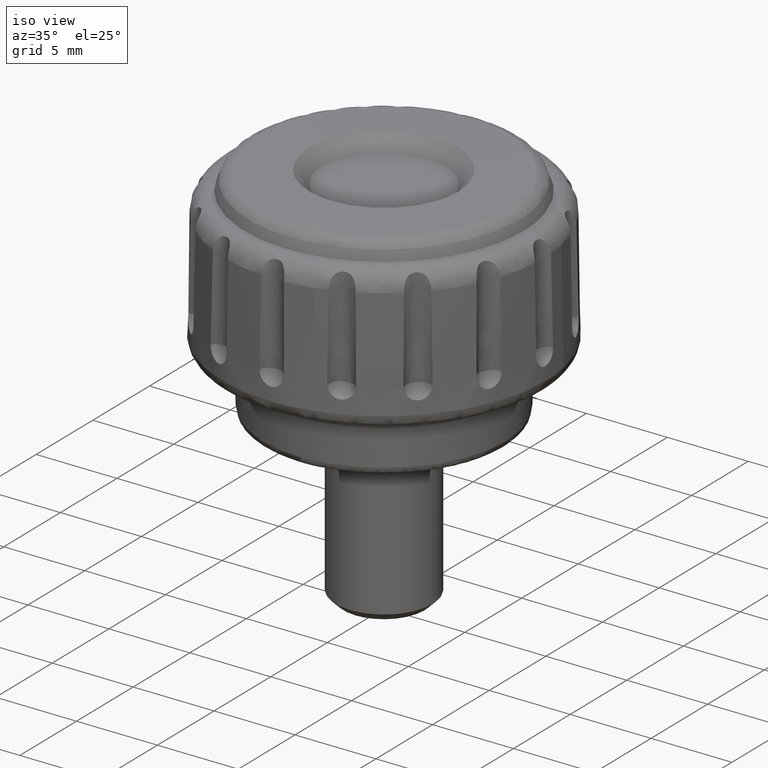
[diagram: clean part render]
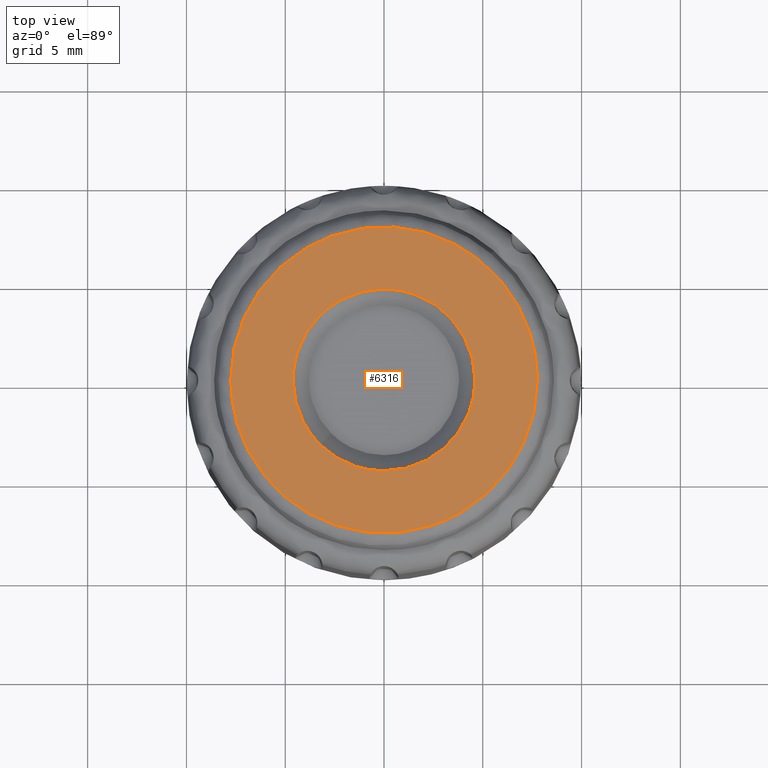
[diagram: tour spotlight — one face highlighted and labeled with its STEP entity id]
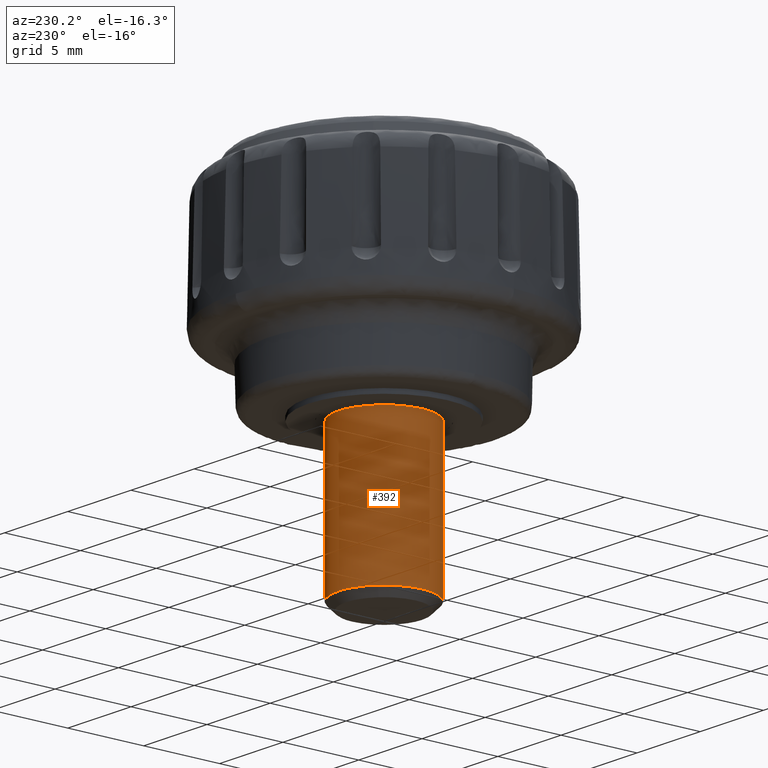
[diagram: tour spotlight — one face highlighted and labeled with its STEP entity id]
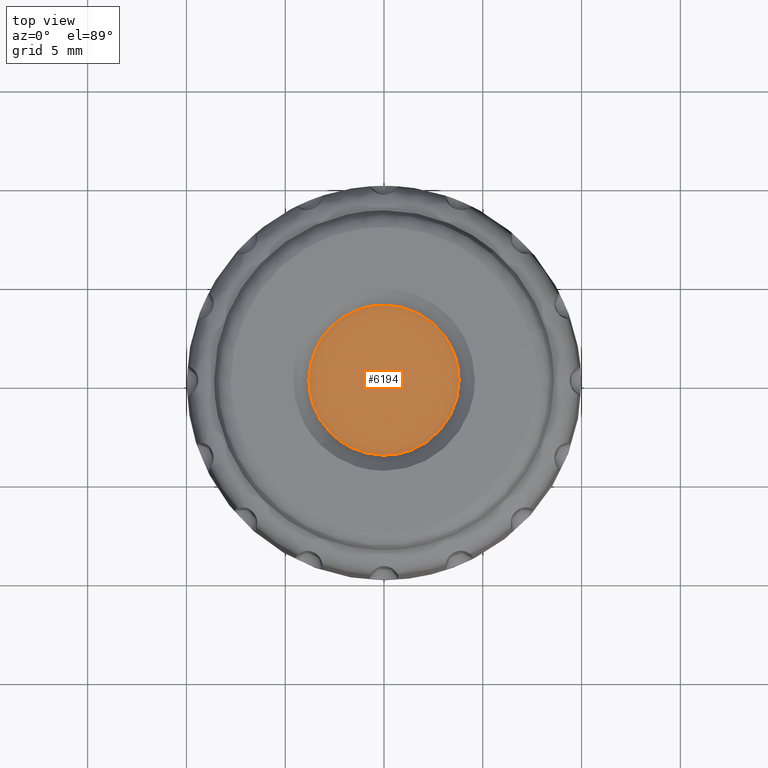
[diagram: tour spotlight — one face highlighted and labeled with its STEP entity id]
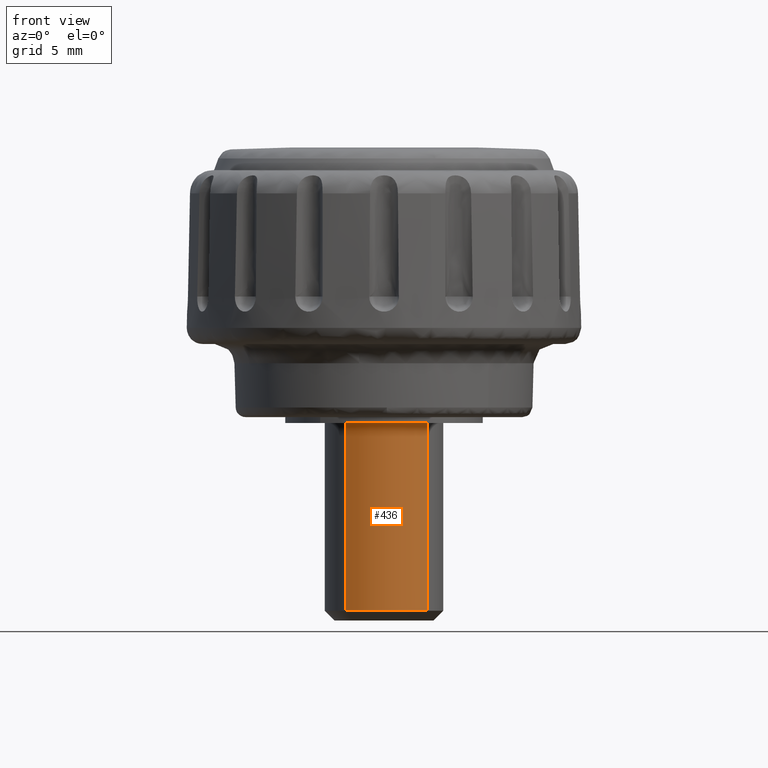
[diagram: tour spotlight — one face highlighted and labeled with its STEP entity id]
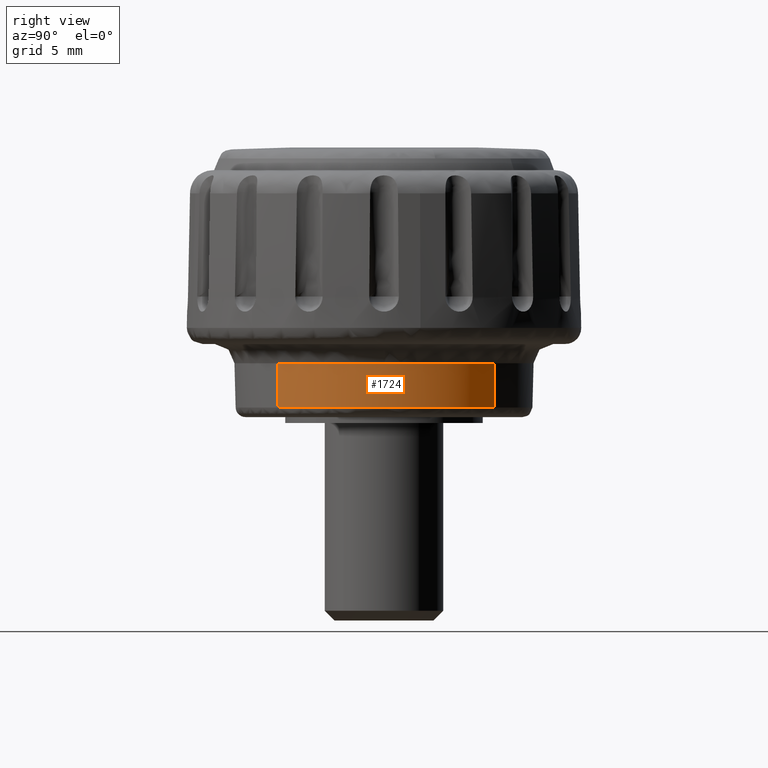
[diagram: tour spotlight — one face highlighted and labeled with its STEP entity id]
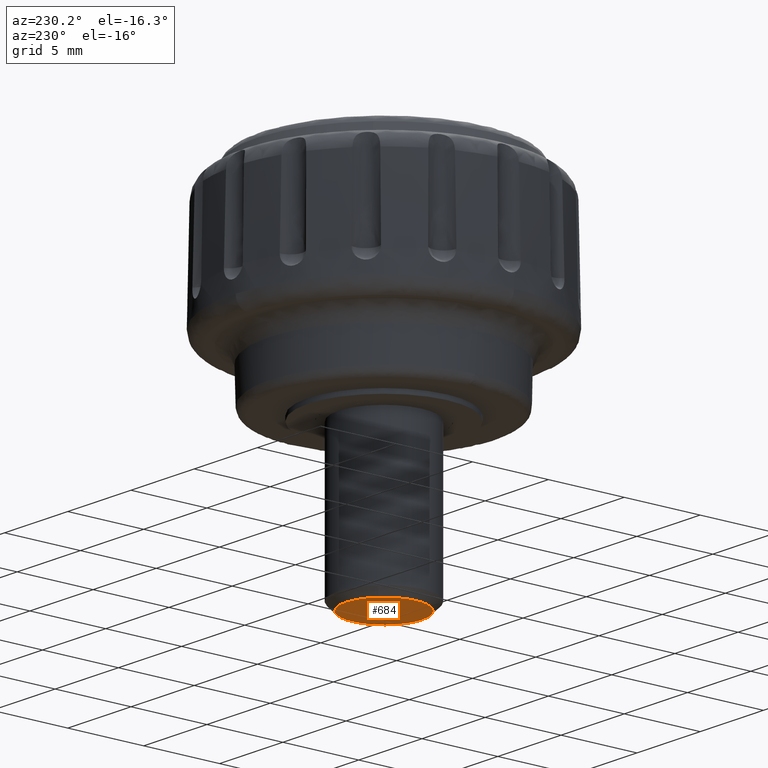
[diagram: tour spotlight — one face highlighted and labeled with its STEP entity id]
A machine part: a face-by-face anatomy tour. The part has 70 B-rep faces; the first image is the clean iso view, then the 6 largest visible faces are spotlighted one at a time (largest first), each with its STEP entity span.

Face 1 — top view, entity #6316. In plain terms, the highlighted face is a freeform B-spline surface patch.
Definition (entity closure, byte-faithful):
#1031=CARTESIAN_POINT('',(-3.226391813104342,-3.283200161639714,13.947016429423300));
#1032=VERTEX_POINT('',#1031);
#1038=CARTESIAN_POINT('',(0.000000261323402,-4.603151999999993,13.947016462083740));
#1039=VERTEX_POINT('',#1038);
#1040=CARTESIAN_POINT('',(-3.226391813104342,-3.283200161639714,13.947016429423300));
#1041=CARTESIAN_POINT('',(-3.060387970830835,-3.446351995465380,13.947016431103769));
#1042=CARTESIAN_POINT('',(-2.760643047192076,-3.699213682633801,13.947016434138030));
#1043=CARTESIAN_POINT('',(-2.251592182368727,-4.027951657538598,13.947016439291140));
#1044=CARTESIAN_POINT('',(-1.756260790220992,-4.268480264637456,13.947016444305209));
#1045=CARTESIAN_POINT('',(-1.172907090481399,-4.464794611152382,13.947016450210540));
#1046=CARTESIAN_POINT('',(-0.595856791151045,-4.578270579598567,13.947016456052051));
#1047=CARTESIAN_POINT('',(-0.186204289395901,-4.603155248808148,13.947016460198650));
#1048=CARTESIAN_POINT('',(0.000000261323402,-4.603151999999993,13.947016462083740));
#1049=B_SPLINE_CURVE_WITH_KNOTS('',3,(#1040,#1041,#1042,#1043,#1044,#1045,#1046,#1047,#1048),.UNSPECIFIED.,.F.,.U.,(4,1,1,1,1,1,4),(3.349638E-009,0.698269075464816,1.173095212023360,1.815498043043235,2.346186556476549,3.016527577985100,3.575142755144841),.UNSPECIFIED.);
#1050=EDGE_CURVE('',#1032,#1039,#1049,.T.);
#1052=CARTESIAN_POINT('',(4.603152000000000,0.0,13.947016462083740));
#1053=VERTEX_POINT('',#1052);
#1054=CARTESIAN_POINT('',(0.000000261323402,-4.603151999999993,13.947016462083740));
#1055=CARTESIAN_POINT('',(0.273032988767705,-4.603179605209070,13.947016462083759));
#1056=CARTESIAN_POINT('',(0.687275757395026,-4.566180971157755,13.947016462083720));
#1057=CARTESIAN_POINT('',(1.330540408832775,-4.419659630731927,13.947016462083750));
#1058=CARTESIAN_POINT('',(1.907293291828556,-4.209306593173576,13.947016462083660));
#1059=CARTESIAN_POINT('',(2.444866373092151,-3.913410929232071,13.947016462083869));
#1060=CARTESIAN_POINT('',(2.934805978365908,-3.561562985617827,13.947016462083560));
#1061=CARTESIAN_POINT('',(3.441299034274784,-3.093998786874699,13.947016462084321));
#1062=CARTESIAN_POINT('',(3.903554511424704,-2.482554733955997,13.947016462082500));
#1063=CARTESIAN_POINT('',(4.266498514660441,-1.777679681519577,13.947016462084790));
#1064=CARTESIAN_POINT('',(4.530330194787697,-0.979115217682138,13.947016462082891));
#1065=CARTESIAN_POINT('',(4.603232334489497,-0.357770086112199,13.947016462084170));
#1066=CARTESIAN_POINT('',(4.603152000000000,0.0,13.947016462083740));
#1067=B_SPLINE_CURVE_WITH_KNOTS('',3,(#1054,#1055,#1056,#1057,#1058,#1059,#1060,#1061,#1062,#1063,#1064,#1065,#1066),.UNSPECIFIED.,.F.,.U.,(4,1,1,1,1,1,1,1,1,1,4),(0.000000013033456,0.819092426731512,1.242762794829674,1.977124490998249,2.654995453510337,3.078666378968654,3.784778167893312,4.716852160537105,5.366479664217192,6.157333408862392,7.230625448727457),.UNSPECIFIED.);
#1068=EDGE_CURVE('',#1039,#1053,#1067,.T.);
#1070=CARTESIAN_POINT('',(-0.000000261323313,4.603151999999992,13.947016462083740));
#1071=VERTEX_POINT('',#1070);
#1072=CARTESIAN_POINT('',(4.603152000000000,0.0,13.947016462083740));
#1073=CARTESIAN_POINT('',(4.603226542943982,0.357769406958450,13.947016462083790));
#1074=CARTESIAN_POINT('',(4.529235180154762,0.988535507651289,13.947016462083671));
#1075=CARTESIAN_POINT('',(4.280835443467709,1.732702787291445,13.947016462083811));
#1076=CARTESIAN_POINT('',(4.008700003123817,2.281656306378146,13.947016462083701));
#1077=CARTESIAN_POINT('',(3.672445987519089,2.805588118939510,13.947016462083820));
#1078=CARTESIAN_POINT('',(3.240297899060793,3.294303124068879,13.947016462083520));
#1079=CARTESIAN_POINT('',(2.755546535251988,3.699612823794959,13.947016462083891));
#1080=CARTESIAN_POINT('',(2.235999538662103,4.042209233578916,13.947016462083649));
#1081=CARTESIAN_POINT('',(1.679791083357495,4.303176315157686,13.947016462083781));
#1082=CARTESIAN_POINT('',(0.903788762069201,4.538587144045447,13.947016462084120));
#1083=CARTESIAN_POINT('',(0.367189688401405,4.603237132635266,13.947016462082980));
#1084=CARTESIAN_POINT('',(-0.000000261323313,4.603151999999992,13.947016462083740));
#1085=B_SPLINE_CURVE_WITH_KNOTS('',3,(#1072,#1073,#1074,#1075,#1076,#1077,#1078,#1079,#1080,#1081,#1082,#1083,#1084),.UNSPECIFIED.,.F.,.U.,(4,1,1,1,1,1,1,1,1,1,4),(0.000000013026232,1.073295997942021,1.892390603326811,2.344307074195087,2.909197718216737,3.756527756666393,4.293180973558776,4.801586652074978,5.620682124168412,6.129086269664853,7.230625743300220),.UNSPECIFIED.);
#1086=EDGE_CURVE('',#1053,#1071,#1085,.T.);
#1088=CARTESIAN_POINT('',(-3.283200301410175,3.226391950456391,13.947016494744190));
#1089=VERTEX_POINT('',#1088);
#1090=CARTESIAN_POINT('',(-0.000000261323313,4.603151999999992,13.947016462083740));
#1091=CARTESIAN_POINT('',(-0.218947428408233,4.603158087397465,13.947016464261759));
#1092=CARTESIAN_POINT('',(-0.694922821327714,4.569143282316874,13.947016468996660));
#1093=CARTESIAN_POINT('',(-1.346548883943977,4.419002661523463,13.947016475478870));
#1094=CARTESIAN_POINT('',(-2.048450165449368,4.144972393383618,13.947016482461180));
#1095=CARTESIAN_POINT('',(-2.690905248610626,3.765464430213897,13.947016488852279));
#1096=CARTESIAN_POINT('',(-3.109729778434075,3.402933341700772,13.947016493018481));
#1097=CARTESIAN_POINT('',(-3.283200301410175,3.226391950456391,13.947016494744190));
#1098=B_SPLINE_CURVE_WITH_KNOTS('',3,(#1090,#1091,#1092,#1093,#1094,#1095,#1096,#1097),.UNSPECIFIED.,.F.,.U.,(4,1,1,1,1,4),(3.493563E-009,0.656843286244349,1.427925707088231,1.999091430189626,2.912963812140091,3.655482845923065),.UNSPECIFIED.);
#1099=EDGE_CURVE('',#1071,#1089,#1098,.T.);
#1199=CARTESIAN_POINT('',(-4.603152000000000,0.0,13.947016462083740));
#1200=VERTEX_POINT('',#1199);
#1201=CARTESIAN_POINT('',(-3.283200301410175,3.226391950456391,13.947016494744190));
#1202=CARTESIAN_POINT('',(-3.511642819595066,2.994009359874393,13.947016492391789));
#1203=CARTESIAN_POINT('',(-3.837355670432383,2.583138892595343,13.947016488232601));
#1204=CARTESIAN_POINT('',(-4.195547198155288,1.928376263219341,13.947016481604511));
#1205=CARTESIAN_POINT('',(-4.438213217057482,1.291592480047662,13.947016475158421));
#1206=CARTESIAN_POINT('',(-4.576015768793602,0.633099669196763,13.947016468492521));
#1207=CARTESIAN_POINT('',(-4.603153840812557,0.186204340297902,13.947016463968680));
#1208=CARTESIAN_POINT('',(-4.603152000000000,0.0,13.947016462083740));
#1209=B_SPLINE_CURVE_WITH_KNOTS('',3,(#1201,#1202,#1203,#1204,#1205,#1206,#1207,#1208),.UNSPECIFIED.,.F.,.U.,(4,1,1,1,1,4),(3.349969E-009,0.977578124921422,1.564127701548055,2.234461708688820,3.016527421702827,3.575142569919666),.UNSPECIFIED.);
#1210=EDGE_CURVE('',#1089,#1200,#1209,.T.);
#1212=CARTESIAN_POINT('',(-4.603152000000000,0.0,13.947016462083740));
#1213=CARTESIAN_POINT('',(-4.603154619807374,-0.171350358820500,13.947016460379190));
#1214=CARTESIAN_POINT('',(-4.581871125204968,-0.552129561063462,13.947016456591321));
#1215=CARTESIAN_POINT('',(-4.481130296461829,-1.105999997247883,13.947016451081510));
#1216=CARTESIAN_POINT('',(-4.273595021523551,-1.760482009146291,13.947016444570920));
#1217=CARTESIAN_POINT('',(-3.898324457191377,-2.513769687168486,13.947016437077270));
#1218=CARTESIAN_POINT('',(-3.484463212651435,-3.029707379314340,13.947016431945070));
#1219=CARTESIAN_POINT('',(-3.226391813104342,-3.283200161639714,13.947016429423300));
#1220=B_SPLINE_CURVE_WITH_KNOTS('',3,(#1212,#1213,#1214,#1215,#1216,#1217,#1218,#1219),.UNSPECIFIED.,.F.,.U.,(4,1,1,1,1,4),(3.492949E-009,0.514051979671721,1.142339160505532,1.684953055108919,2.570260587859323,3.655483029438100),.UNSPECIFIED.);
#1221=EDGE_CURVE('',#1200,#1032,#1220,.T.);
#3900=CARTESIAN_POINT('',(2.396358734929993,-7.375233824050735,13.849589605503400));
#3901=VERTEX_POINT('',#3900);
#3913=CARTESIAN_POINT('',(-7.754779730184260,0.0,13.849589606709181));
#3914=VERTEX_POINT('',#3913);
#3915=CARTESIAN_POINT('',(2.396358734929993,-7.375233824050735,13.849589605503400));
#3916=CARTESIAN_POINT('',(1.862388311805299,-7.548838179026086,13.849589605619791));
#3917=CARTESIAN_POINT('',(0.906493397784181,-7.747965358432615,13.849589605817631));
#3918=CARTESIAN_POINT('',(-0.362977747622152,-7.770542789229250,13.849589606057490));
#3919=CARTESIAN_POINT('',(-1.300041365648415,-7.659020813424925,13.849589606222580));
#3920=CARTESIAN_POINT('',(-2.201554583400563,-7.456021599712076,13.849589606372319));
#3921=CARTESIAN_POINT('',(-3.118308476417962,-7.128638710463005,13.849589606513151));
#3922=CARTESIAN_POINT('',(-3.995923869691120,-6.666422694936236,13.849589606633851));
#3923=CARTESIAN_POINT('',(-4.821258825642544,-6.100941464304918,13.849589606735320));
#3924=CARTESIAN_POINT('',(-5.533974706989620,-5.466042137472437,13.849589606808260));
#3925=CARTESIAN_POINT('',(-6.166761267595060,-4.727869621146913,13.849589606858469));
#3926=CARTESIAN_POINT('',(-6.687403756053418,-3.964004417432804,13.849589606881979));
#3927=CARTESIAN_POINT('',(-7.129516576856644,-3.108035109321979,13.849589606885431));
#3928=CARTESIAN_POINT('',(-7.477084842187052,-2.138528651436642,13.849589606858990));
#3929=CARTESIAN_POINT('',(-7.701417794402340,-1.103910524498201,13.849589606803230));
#3930=CARTESIAN_POINT('',(-7.754798563448470,-0.380660589777228,13.849589606745100));
#3931=CARTESIAN_POINT('',(-7.754779730184260,0.0,13.849589606709181));
#3932=B_SPLINE_CURVE_WITH_KNOTS('',3,(#3915,#3916,#3917,#3918,#3919,#3920,#3921,#3922,#3923,#3924,#3925,#3926,#3927,#3928,#3929,#3930,#3931),.UNSPECIFIED.,.F.,.U.,(4,1,1,1,1,1,1,1,1,1,1,1,1,1,4),(0.000000012298992,1.684424855663844,2.912063486891478,3.797104446087985,4.510847626303049,5.681384069865681,6.709175864186492,7.480003046033655,8.679090349917056,9.564132570205850,10.392073926221080,11.448413024238940,12.447652487215660,13.475444784111909,14.617423684785379),.UNSPECIFIED.);
#3933=EDGE_CURVE('',#3901,#3914,#3932,.T.);
#3935=CARTESIAN_POINT('',(7.375233818814479,2.396358732976183,13.849589605719940));
#3936=VERTEX_POINT('',#3935);
#3937=CARTESIAN_POINT('',(-7.754779730184260,0.0,13.849589606709181));
#3938=CARTESIAN_POINT('',(-7.754833070909862,0.485343089320584,13.849589606739981));
#3939=CARTESIAN_POINT('',(-7.676791511465619,1.313262457429692,13.849589606786751));
#3940=CARTESIAN_POINT('',(-7.407131864219365,2.351787251200878,13.849589606832270));
#3941=CARTESIAN_POINT('',(-7.042860974373591,3.298782670799183,13.849589606864971));
#3942=CARTESIAN_POINT('',(-6.605764475950173,4.104585596143863,13.849589606883191));
#3943=CARTESIAN_POINT('',(-5.968728000143736,4.984232553185011,13.849589606890810));
#3944=CARTESIAN_POINT('',(-5.263041480367675,5.735990121773101,13.849589606885511));
#3945=CARTESIAN_POINT('',(-4.339646170550662,6.460270875836376,13.849589606861819));
#3946=CARTESIAN_POINT('',(-3.481899237278167,6.949993767084052,13.849589606828189));
#3947=CARTESIAN_POINT('',(-2.679101174773766,7.289454548450672,13.849589606789181));
#3948=CARTESIAN_POINT('',(-2.011339359971830,7.500548375544622,13.849589606752231));
#3949=CARTESIAN_POINT('',(-1.201784784378430,7.677400578386693,13.849589606702370));
#3950=CARTESIAN_POINT('',(-0.333724368138042,7.768547923749311,13.849589606642679));
#3951=CARTESIAN_POINT('',(0.652643692070650,7.746452395266402,13.849589606566850));
#3952=CARTESIAN_POINT('',(1.530307087490399,7.619285690992925,13.849589606492589));
#3953=CARTESIAN_POINT('',(2.359667871892288,7.401226455328923,13.849589606416149));
#3954=CARTESIAN_POINT('',(3.242886617450471,7.069558920559862,13.849589606328470));
#3955=CARTESIAN_POINT('',(4.164400871319800,6.575911502911052,13.849589606227591));
#3956=CARTESIAN_POINT('',(5.036068702721146,5.925676189956968,13.849589606120549));
#3957=CARTESIAN_POINT('',(5.733764987831465,5.248224705650628,13.849589606024781));
#3958=CARTESIAN_POINT('',(6.328195504274718,4.515237445751425,13.849589605933780));
#3959=CARTESIAN_POINT('',(6.913148945676070,3.582036767890362,13.849589605829861));
#3960=CARTESIAN_POINT('',(7.229713525318721,2.844387494858381,13.849589605759579));
#3961=CARTESIAN_POINT('',(7.375233818814479,2.396358732976183,13.849589605719940));
#3962=B_SPLINE_CURVE_WITH_KNOTS('',3,(#3937,#3938,#3939,#3940,#3941,#3942,#3943,#3944,#3945,#3946,#3947,#3948,#3949,#3950,#3951,#3952,#3953,#3954,#3955,#3956,#3957,#3958,#3959,#3960,#3961),.UNSPECIFIED.,.F.,.U.,(4,1,1,1,1,1,1,1,1,1,1,1,1,1,1,1,1,1,1,1,1,1,4),(0.000000018573665,1.456020476668297,2.483820646400886,3.211836458654190,4.496573987283469,5.224590922290762,6.466502233374856,7.579940557922530,8.736205193927104,9.421396338709831,10.192245082791210,10.834616301881089,11.905203207908841,12.804522638511070,13.789489269378750,14.560333265772700,15.373997009830539,16.615912108134701,17.686528491737679,18.628670869700851,19.527981369240141,20.512953550944431,21.926151000448559),.UNSPECIFIED.);
#3963=EDGE_CURVE('',#3914,#3936,#3962,.T.);
#4002=CARTESIAN_POINT('',(7.754779730184260,0.0,13.849589606709181));
#4003=VERTEX_POINT('',#4002);
#4004=CARTESIAN_POINT('',(7.375233818814479,2.396358732976183,13.849589605719940));
#4005=CARTESIAN_POINT('',(7.465420583281060,2.118803128264872,13.849589605955030));
#4006=CARTESIAN_POINT('',(7.672730312761909,1.332288731731592,13.849589606495240));
#4007=CARTESIAN_POINT('',(7.754861569301347,0.520245812015576,13.849589606709420));
#4008=CARTESIAN_POINT('',(7.754779730184260,0.0,13.849589606709181));
#4009=B_SPLINE_CURVE_WITH_KNOTS('',3,(#4004,#4005,#4006,#4007,#4008),.UNSPECIFIED.,.F.,.U.,(4,1,4),(4.342904E-010,0.875523658112124,2.436238352529898),.UNSPECIFIED.);
#4010=EDGE_CURVE('',#3936,#4003,#4009,.T.);
#4012=CARTESIAN_POINT('',(7.754779730184260,0.0,13.849589606709181));
#4013=CARTESIAN_POINT('',(7.754795274130229,-0.355284542924997,13.849589606709181));
#4014=CARTESIAN_POINT('',(7.705861498835904,-1.065849397294243,13.849589606698190));
#4015=CARTESIAN_POINT('',(7.484569426553112,-2.124048483110809,13.849589606648340));
#4016=CARTESIAN_POINT('',(7.083295125393796,-3.236968710933128,13.849589606558110));
#4017=CARTESIAN_POINT('',(6.509530960043845,-4.273409958696724,13.849589606429010));
#4018=CARTESIAN_POINT('',(5.805252979045129,-5.175798442748333,13.849589606270420));
#4019=CARTESIAN_POINT('',(5.006366562240959,-5.959180523932496,13.849589606090680));
#4020=CARTESIAN_POINT('',(4.171976164529840,-6.565408387278795,13.849589605902890));
#4021=CARTESIAN_POINT('',(3.265517196652688,-7.052746298343029,13.849589605698929));
#4022=CARTESIAN_POINT('',(2.710122287162174,-7.273297040822402,13.849589605574050));
#4023=CARTESIAN_POINT('',(2.396358734929993,-7.375233824050735,13.849589605503400));
#4024=B_SPLINE_CURVE_WITH_KNOTS('',3,(#4012,#4013,#4014,#4015,#4016,#4017,#4018,#4019,#4020,#4021,#4022,#4023),.UNSPECIFIED.,.F.,.U.,(4,1,1,1,1,1,1,1,1,4),(6.593647E-009,1.065852721046584,2.131708467838210,3.235629549121932,4.606014964945518,5.671862279504250,6.661587226301158,7.955842888959979,8.755231876972042,9.744953407059063),.UNSPECIFIED.);
#4025=EDGE_CURVE('',#4003,#3901,#4024,.T.);
#6278=CARTESIAN_POINT('',(-8.524929804420813,-8.524738930365626,13.636301310428923));
#6279=CARTESIAN_POINT('',(-4.264403621807347,-8.528616282743247,13.818070018097037));
#6280=CARTESIAN_POINT('',(4.264403426721783,-8.528616282743247,13.818070018097037));
#6281=CARTESIAN_POINT('',(8.524929414781672,-8.524738930720222,13.636301327052269));
#6282=CARTESIAN_POINT('',(-8.528807069905144,-4.264308054518796,13.818061874846050));
#6283=CARTESIAN_POINT('',(-4.266344018869269,-4.266248494987860,13.999995999999950));
#6284=CARTESIAN_POINT('',(4.266343823694937,-4.266248494987860,13.999995999999950));
#6285=CARTESIAN_POINT('',(8.528806680088950,-4.264308054696255,13.818061891484518));
#6286=CARTESIAN_POINT('',(-8.528807069905144,4.262396339237191,13.818061874846050));
#6287=CARTESIAN_POINT('',(-4.266344018869269,4.264335909794971,13.999995999999950));
#6288=CARTESIAN_POINT('',(4.266343823694937,4.264335909794971,13.999995999999950));
#6289=CARTESIAN_POINT('',(8.528806680088950,4.262396339414571,13.818061891484518));
#6290=CARTESIAN_POINT('',(-8.524933278466410,8.520920710375671,13.636464168631873));
#6291=CARTESIAN_POINT('',(-4.264405360410627,8.524796327672075,13.818233024481057));
#6292=CARTESIAN_POINT('',(4.264405165324984,8.524796327672075,13.818233024481057));
#6293=CARTESIAN_POINT('',(8.524932888827109,8.520920710730110,13.636464185255232));
#6301=(BOUNDED_SURFACE()B_SPLINE_SURFACE(2,2,((#6278,#6282,#6286,#6290),(#6279,#6283,#6287,#6291),(#6280,#6284,#6288,#6292),(#6281,#6285,#6289,#6293)),.UNSPECIFIED.,.F.,.F.,.U.)B_SPLINE_SURFACE_WITH_KNOTS((3,1,3),(3,1,3),(79.265317401885980,87.588287543892932,95.911257305145270),(79.265503754043579,87.588287543892946,95.907340179061890),.UNSPECIFIED.)GEOMETRIC_REPRESENTATION_ITEM()RATIONAL_B_SPLINE_SURFACE(((1.000910064187708,1.000455042282184,1.000455042282184,1.000909656300973),(1.000455021905525,1.0,1.0,1.000454614018789),(1.000455021905525,1.0,1.0,1.000454614018789),(1.000910064146074,1.000455042240550,1.000455042240550,1.000909656259339)))REPRESENTATION_ITEM('')SURFACE());
#6302=ORIENTED_EDGE('',*,*,#3933,.F.);
#6303=ORIENTED_EDGE('',*,*,#4025,.F.);
#6304=ORIENTED_EDGE('',*,*,#4010,.F.);
#6305=ORIENTED_EDGE('',*,*,#3963,.F.);
#6306=EDGE_LOOP('',(#6302,#6303,#6304,#6305));
#6307=FACE_OUTER_BOUND('',#6306,.T.);
#6308=ORIENTED_EDGE('',*,*,#1068,.F.);
#6309=ORIENTED_EDGE('',*,*,#1050,.F.);
#6310=ORIENTED_EDGE('',*,*,#1221,.F.);
#6311=ORIENTED_EDGE('',*,*,#1210,.F.);
#6312=ORIENTED_EDGE('',*,*,#1099,.F.);
#6313=ORIENTED_EDGE('',*,*,#1086,.F.);
#6314=EDGE_LOOP('',(#6308,#6309,#6310,#6311,#6312,#6313));
#6315=FACE_BOUND('',#6314,.T.);
#6316=ADVANCED_FACE('',(#6307,#6315),#6301,.T.);

Face 2 — auxiliary view, entity #392. In plain terms, the highlighted face is a freeform B-spline surface patch.
Definition (entity closure, byte-faithful):
#130=CARTESIAN_POINT('',(2.026770704727430,2.211832099787242,-9.503982959709228));
#131=VERTEX_POINT('',#130);
#137=CARTESIAN_POINT('',(3.0,0.0,-9.503983000000000));
#138=VERTEX_POINT('',#137);
#139=CARTESIAN_POINT('',(2.026770704727430,2.211832099787242,-9.503982959709228));
#140=CARTESIAN_POINT('',(2.165266473807760,2.084952294704629,-9.503982962020473));
#141=CARTESIAN_POINT('',(2.413936845195948,1.809884242826981,-9.503982967031110));
#142=CARTESIAN_POINT('',(2.675908241025121,1.383109840763141,-9.503982974805268));
#143=CARTESIAN_POINT('',(2.850763401160428,0.963774151494884,-9.503982982443874));
#144=CARTESIAN_POINT('',(2.968872019961694,0.518138497859550,-9.503982990561575));
#145=CARTESIAN_POINT('',(3.000022536183211,0.187828937246020,-9.503982996578566));
#146=CARTESIAN_POINT('',(3.0,0.0,-9.503983000000000));
#147=B_SPLINE_CURVE_WITH_KNOTS('',3,(#139,#140,#141,#142,#143,#144,#145,#146),.UNSPECIFIED.,.F.,.U.,(4,1,1,1,1,4),(4.447066E-009,0.563482881577941,1.107536768555267,1.496142522837400,1.923615704269092,2.487098581397036),.UNSPECIFIED.);
#148=EDGE_CURVE('',#131,#138,#147,.T.);
#150=CARTESIAN_POINT('',(2.176123048433030,-2.065063677805594,-9.503982999999952));
#151=VERTEX_POINT('',#150);
#152=CARTESIAN_POINT('',(3.0,0.0,-9.503983000000000));
#153=CARTESIAN_POINT('',(3.000036265043160,-0.207602940019180,-9.503982999999996));
#154=CARTESIAN_POINT('',(2.969083105254621,-0.504156056295727,-9.503982999999977));
#155=CARTESIAN_POINT('',(2.853579478061450,-0.952630495778143,-9.503983000000011));
#156=CARTESIAN_POINT('',(2.712426304452092,-1.306429429666059,-9.503982999999940));
#157=CARTESIAN_POINT('',(2.480114933818109,-1.707562868060090,-9.503983000000018));
#158=CARTESIAN_POINT('',(2.294537764497098,-1.940300765247195,-9.503982999999906));
#159=CARTESIAN_POINT('',(2.176123048433030,-2.065063677805594,-9.503982999999952));
#160=B_SPLINE_CURVE_WITH_KNOTS('',3,(#152,#153,#154,#155,#156,#157,#158,#159),.UNSPECIFIED.,.F.,.U.,(4,1,1,1,1,4),(3.452136E-009,0.622797197223965,0.889712048846822,1.387945945275860,1.761626190831661,2.277657990667467),.UNSPECIFIED.);
#161=EDGE_CURVE('',#138,#151,#160,.T.);
#176=CARTESIAN_POINT('',(-1.937226157680744,-2.290666997320322,-9.503983000000124));
#177=VERTEX_POINT('',#176);
#188=CARTESIAN_POINT('',(-3.0,0.0,-9.503983000000000));
#189=VERTEX_POINT('',#188);
#190=CARTESIAN_POINT('',(-1.937226157680744,-2.290666997320322,-9.503983000000124));
#191=CARTESIAN_POINT('',(-2.077163229383662,-2.172334876040241,-9.503983000000142));
#192=CARTESIAN_POINT('',(-2.363966407790554,-1.880783925773549,-9.503983000000051));
#193=CARTESIAN_POINT('',(-2.638228348831499,-1.456243216122592,-9.503983000000170));
#194=CARTESIAN_POINT('',(-2.813146936698542,-1.058074120815255,-9.503982999999995));
#195=CARTESIAN_POINT('',(-2.953697368642451,-0.617635574056544,-9.503983000000154));
#196=CARTESIAN_POINT('',(-3.000073008729592,-0.251146732347181,-9.503982999999955));
#197=CARTESIAN_POINT('',(-3.0,0.0,-9.503983000000000));
#198=B_SPLINE_CURVE_WITH_KNOTS('',3,(#190,#191,#192,#193,#194,#195,#196,#197),.UNSPECIFIED.,.F.,.U.,(4,1,1,1,1,4),(4.951211E-009,0.549789520470351,1.221759040957704,1.506830215897550,1.852994425546073,2.606409917929356),.UNSPECIFIED.);
#199=EDGE_CURVE('',#177,#189,#198,.T.);
#201=CARTESIAN_POINT('',(-2.092295892351871,2.149952829517147,-9.503983040429738));
#202=VERTEX_POINT('',#201);
#203=CARTESIAN_POINT('',(-3.0,0.0,-9.503983000000000));
#204=CARTESIAN_POINT('',(-3.000003637356503,0.137325953862313,-9.503983002582395));
#205=CARTESIAN_POINT('',(-2.979827213880216,0.430705673465794,-9.503983008099404));
#206=CARTESIAN_POINT('',(-2.896872694548869,0.809926377177596,-9.503983015230649));
#207=CARTESIAN_POINT('',(-2.763420885900806,1.186936181070241,-9.503983022320265));
#208=CARTESIAN_POINT('',(-2.537492661514606,1.640855206041548,-9.503983030856087));
#209=CARTESIAN_POINT('',(-2.280235609305437,1.967154680199719,-9.503983036992294));
#210=CARTESIAN_POINT('',(-2.092295892351871,2.149952829517147,-9.503983040429738));
#211=B_SPLINE_CURVE_WITH_KNOTS('',3,(#203,#204,#205,#206,#207,#208,#209,#210),.UNSPECIFIED.,.F.,.U.,(4,1,1,1,1,4),(3.937011E-009,0.411978815631985,0.880139100201615,1.161033574046817,1.610463414129466,2.396969200931250),.UNSPECIFIED.);
#212=EDGE_CURVE('',#189,#202,#211,.T.);
#249=CARTESIAN_POINT('',(0.000000323567764,2.999999999999982,-9.503983000000000));
#250=VERTEX_POINT('',#249);
#251=CARTESIAN_POINT('',(-2.092295892351871,2.149952829517147,-9.503983040429738));
#252=CARTESIAN_POINT('',(-1.906535854886919,2.330853296255544,-9.503983036840346));
#253=CARTESIAN_POINT('',(-1.614309872822355,2.549250889931367,-9.503983031193444));
#254=CARTESIAN_POINT('',(-1.176358731889312,2.766906856931321,-9.503983022731026));
#255=CARTESIAN_POINT('',(-0.863833032652626,2.879826983275794,-9.503983016691963));
#256=CARTESIAN_POINT('',(-0.464284233324281,2.974284231128553,-9.503983008971453));
#257=CARTESIAN_POINT('',(-0.180893863376441,3.000019558261382,-9.503983003495437));
#258=CARTESIAN_POINT('',(0.000000323567764,2.999999999999982,-9.503983000000000));
#259=B_SPLINE_CURVE_WITH_KNOTS('',3,(#251,#252,#253,#254,#255,#256,#257,#258),.UNSPECIFIED.,.F.,.U.,(4,1,1,1,1,4),(3.524568E-009,0.777840021863649,1.085358589773365,1.465230995832746,1.772749194091111,2.315427406514740),.UNSPECIFIED.);
#260=EDGE_CURVE('',#202,#250,#259,.T.);
#262=CARTESIAN_POINT('',(0.000000323567764,2.999999999999982,-9.503983000000000));
#263=CARTESIAN_POINT('',(0.173852490824325,3.000015468125775,-9.503982996543950));
#264=CARTESIAN_POINT('',(0.509958122783843,2.970697432341027,-9.503982989862390));
#265=CARTESIAN_POINT('',(1.038829464390821,2.832879673944008,-9.503982979348827));
#266=CARTESIAN_POINT('',(1.555340243544191,2.589434629542592,-9.503982969080886));
#267=CARTESIAN_POINT('',(1.881518694431243,2.344962153156827,-9.503982962596766));
#268=CARTESIAN_POINT('',(2.026770704727430,2.211832099787242,-9.503982959709228));
#269=B_SPLINE_CURVE_WITH_KNOTS('',3,(#262,#263,#264,#265,#266,#267,#268),.UNSPECIFIED.,.F.,.U.,(4,1,1,1,4),(9.412209E-010,0.521556318981383,1.008342412059873,1.634209804604458,2.225306972187412),.UNSPECIFIED.);
#270=EDGE_CURVE('',#250,#131,#269,.T.);
#286=CARTESIAN_POINT('',(-1.937226115146076,-2.290666928821395,0.237599575000000));
#287=CARTESIAN_POINT('',(-2.002784018511870,-2.235224349694545,0.237599575000000));
#288=CARTESIAN_POINT('',(-2.065063727081261,-2.176123113036862,0.237599575000000));
#289=CARTESIAN_POINT('',(-4.241186840118123,-0.111059385955601,0.237599575000000));
#290=CARTESIAN_POINT('',(-2.176123113036862,2.065063727081261,0.237599575000000));
#291=CARTESIAN_POINT('',(-0.111059385955601,4.241186840118123,0.237599575000000));
#292=CARTESIAN_POINT('',(2.065063727081261,2.176123113036862,0.237599575000000));
#293=CARTESIAN_POINT('',(4.241186840118123,0.111059385955601,0.237599575000000));
#294=CARTESIAN_POINT('',(2.176123113036862,-2.065063727081261,0.237599575000000));
#295=CARTESIAN_POINT('',(-1.937226115146076,-2.290666928821395,-9.747522564375000));
#296=CARTESIAN_POINT('',(-2.002784018511870,-2.235224349694545,-9.747522564375000));
#297=CARTESIAN_POINT('',(-2.065063727081261,-2.176123113036862,-9.747522564375000));
#298=CARTESIAN_POINT('',(-4.241186840118123,-0.111059385955601,-9.747522564375000));
#299=CARTESIAN_POINT('',(-2.176123113036862,2.065063727081261,-9.747522564375000));
#300=CARTESIAN_POINT('',(-0.111059385955601,4.241186840118123,-9.747522564375000));
#301=CARTESIAN_POINT('',(2.065063727081261,2.176123113036862,-9.747522564375000));
#302=CARTESIAN_POINT('',(4.241186840118123,0.111059385955601,-9.747522564375000));
#303=CARTESIAN_POINT('',(2.176123113036862,-2.065063727081261,-9.747522564375000));
#311=(BOUNDED_SURFACE()B_SPLINE_SURFACE(2,1,((#286,#295),(#287,#296),(#288,#297),(#289,#298),(#290,#299),(#291,#300),(#292,#301),(#293,#302),(#294,#303)),.UNSPECIFIED.,.F.,.F.,.U.)B_SPLINE_SURFACE_WITH_KNOTS((3,2,2,2,3),(2,2),(0.0,0.198822509939086,5.169385258416225,10.139948006893370,15.110510755370500),(0.0,9.985122139375001),.UNSPECIFIED.)GEOMETRIC_REPRESENTATION_ITEM()RATIONAL_B_SPLINE_SURFACE(((0.977505800795127,0.977505800795127),(0.988284271247462,0.988284271247462),(1.0,1.0),(0.707106781186548,0.707106781186548),(1.0,1.0),(0.707106781186548,0.707106781186548),(1.0,1.0),(0.707106781186548,0.707106781186548),(1.0,1.0)))REPRESENTATION_ITEM('')SURFACE());
#312=ORIENTED_EDGE('',*,*,#199,.F.);
#313=CARTESIAN_POINT('',(-1.937226157793238,-2.290666997225185,-2.271543E-016));
#314=VERTEX_POINT('',#313);
#315=CARTESIAN_POINT('',(-1.937226157793238,-2.290666997225185,-2.271543E-016));
#316=CARTESIAN_POINT('',(-1.937226157680744,-2.290666997320322,-9.503983000000124));
#317=QUASI_UNIFORM_CURVE('',1,(#315,#316),.UNSPECIFIED.,.F.,.U.);
#318=EDGE_CURVE('',#314,#177,#317,.T.);
#319=ORIENTED_EDGE('',*,*,#318,.F.);
#320=CARTESIAN_POINT('',(-3.0,0.0,0.0));
#321=VERTEX_POINT('',#320);
#322=CARTESIAN_POINT('',(-1.937226157793238,-2.290666997225185,-2.271543E-016));
#323=CARTESIAN_POINT('',(-2.087539847507065,-2.163578283872239,-2.145515E-016));
#324=CARTESIAN_POINT('',(-2.320250200018964,-1.923712996615256,-1.907652E-016));
#325=CARTESIAN_POINT('',(-2.606205715278313,-1.509374199445775,-1.496773E-016));
#326=CARTESIAN_POINT('',(-2.820162957007651,-1.068039942557974,-1.059123E-016));
#327=CARTESIAN_POINT('',(-2.966314750521168,-0.549783372015926,-5.451933E-017));
#328=CARTESIAN_POINT('',(-3.000015332044409,-0.183263765844326,-1.817337E-017));
#329=CARTESIAN_POINT('',(-3.0,0.0,0.0));
#330=B_SPLINE_CURVE_WITH_KNOTS('',3,(#322,#323,#324,#325,#326,#327,#328,#329),.UNSPECIFIED.,.F.,.U.,(4,1,1,1,1,4),(4.951833E-009,0.590514456563457,0.997766956257538,1.506830215812683,2.056620453804122,2.606409917782019),.UNSPECIFIED.);
#331=EDGE_CURVE('',#314,#321,#330,.T.);
#332=ORIENTED_EDGE('',*,*,#331,.T.);
#333=CARTESIAN_POINT('',(0.000000323567764,2.999999999999982,0.0));
#334=VERTEX_POINT('',#333);
#335=CARTESIAN_POINT('',(-3.0,0.0,0.0));
#336=CARTESIAN_POINT('',(-3.000045736573530,0.220897268015211,0.0));
#337=CARTESIAN_POINT('',(-2.963906511657787,0.546078903713171,0.0));
#338=CARTESIAN_POINT('',(-2.818118172659005,1.066757714654051,0.0));
#339=CARTESIAN_POINT('',(-2.613737157055098,1.509383767055503,0.0));
#340=CARTESIAN_POINT('',(-2.329986571354482,1.904449453342314,0.0));
#341=CARTESIAN_POINT('',(-2.063931952933606,2.185609038805085,0.0));
#342=CARTESIAN_POINT('',(-1.815318994394453,2.396101472572749,0.0));
#343=CARTESIAN_POINT('',(-1.463548281030866,2.632746159162319,0.0));
#344=CARTESIAN_POINT('',(-1.072714655345145,2.816125263703739,0.0));
#345=CARTESIAN_POINT('',(-0.552216515226029,2.963595748419876,0.0));
#346=CARTESIAN_POINT('',(-0.214759628881096,3.000039216473228,0.0));
#347=CARTESIAN_POINT('',(0.000000323567764,2.999999999999982,0.0));
#348=B_SPLINE_CURVE_WITH_KNOTS('',3,(#335,#336,#337,#338,#339,#340,#341,#342,#343,#344,#345,#346,#347),.UNSPECIFIED.,.F.,.U.,(4,1,1,1,1,1,1,1,1,1,4),(0.000000014187196,0.662678409477201,0.975612655401437,1.619890189460407,2.116898588030588,2.429824521098291,2.779571879795641,3.092506884582671,3.699967976541383,4.068126800926110,4.712396555124243),.UNSPECIFIED.);
#349=EDGE_CURVE('',#321,#334,#348,.T.);
#350=ORIENTED_EDGE('',*,*,#349,.T.);
#351=CARTESIAN_POINT('',(3.0,0.0,0.0));
#352=VERTEX_POINT('',#351);
#353=CARTESIAN_POINT('',(0.000000323567764,2.999999999999982,0.0));
#354=CARTESIAN_POINT('',(0.220896309002401,3.000043213710785,0.0));
#355=CARTESIAN_POINT('',(0.601303821642901,2.957781178935545,0.0));
#356=CARTESIAN_POINT('',(1.165730805128656,2.782791273502977,0.0));
#357=CARTESIAN_POINT('',(1.613341141020239,2.547064947211128,0.0));
#358=CARTESIAN_POINT('',(1.998163341016586,2.250485190297845,0.0));
#359=CARTESIAN_POINT('',(2.330000073737125,1.912515755438415,0.0));
#360=CARTESIAN_POINT('',(2.622093675439465,1.492331014790879,0.0));
#361=CARTESIAN_POINT('',(2.834617102640633,1.020675309067006,0.0));
#362=CARTESIAN_POINT('',(2.967792266621188,0.527682145457579,0.0));
#363=CARTESIAN_POINT('',(3.000022268971977,0.190214383421859,0.0));
#364=CARTESIAN_POINT('',(3.0,0.0,0.0));
#365=B_SPLINE_CURVE_WITH_KNOTS('',3,(#353,#354,#355,#356,#357,#358,#359,#360,#361,#362,#363,#364),.UNSPECIFIED.,.F.,.U.,(4,1,1,1,1,1,1,1,1,4),(0.000000014214299,0.662678358185554,1.141283403803869,1.767151967506206,2.172128269885599,2.595498598521654,3.184548917220641,3.699967690125214,4.141755746004676,4.712396190387397),.UNSPECIFIED.);
#366=EDGE_CURVE('',#334,#352,#365,.T.);
#367=ORIENTED_EDGE('',*,*,#366,.T.);
#368=CARTESIAN_POINT('',(2.176123048504251,-2.065063677730542,-2.220446E-016));
#369=VERTEX_POINT('',#368);
#370=CARTESIAN_POINT('',(3.0,0.0,0.0));
#371=CARTESIAN_POINT('',(3.000031059516533,-0.207601411543442,-2.232220E-017));
#372=CARTESIAN_POINT('',(2.959197674883705,-0.599058558132210,-6.441337E-017));
#373=CARTESIAN_POINT('',(2.785214672858082,-1.162505360352243,-1.249976E-016));
#374=CARTESIAN_POINT('',(2.524668715766907,-1.651715982103123,-1.775997E-016));
#375=CARTESIAN_POINT('',(2.294536095724252,-1.940299769673755,-2.086294E-016));
#376=CARTESIAN_POINT('',(2.176123048504251,-2.065063677730542,-2.220446E-016));
#377=B_SPLINE_CURVE_WITH_KNOTS('',3,(#370,#371,#372,#373,#374,#375,#376),.UNSPECIFIED.,.F.,.U.,(4,1,1,1,4),(3.452365E-009,0.622797197195907,1.174416790263514,1.761626190751784,2.277657990563995),.UNSPECIFIED.);
#378=EDGE_CURVE('',#352,#369,#377,.T.);
#379=ORIENTED_EDGE('',*,*,#378,.T.);
#380=CARTESIAN_POINT('',(2.176123048504251,-2.065063677730542,-2.220446E-016));
#381=CARTESIAN_POINT('',(2.176123048433030,-2.065063677805594,-9.503982999999952));
#382=QUASI_UNIFORM_CURVE('',1,(#380,#381),.UNSPECIFIED.,.F.,.U.);
#383=EDGE_CURVE('',#369,#151,#382,.T.);
#384=ORIENTED_EDGE('',*,*,#383,.T.);
#385=ORIENTED_EDGE('',*,*,#161,.F.);
#386=ORIENTED_EDGE('',*,*,#148,.F.);
#387=ORIENTED_EDGE('',*,*,#270,.F.);
#388=ORIENTED_EDGE('',*,*,#260,.F.);
#389=ORIENTED_EDGE('',*,*,#212,.F.);
#390=EDGE_LOOP('',(#312,#319,#332,#350,#367,#379,#384,#385,#386,#387,#388,#389));
#391=FACE_OUTER_BOUND('',#390,.T.);
#392=ADVANCED_FACE('',(#391),#311,.T.);

Face 3 — top view, entity #6194. In plain terms, the highlighted face is a freeform B-spline surface patch.
Definition (entity closure, byte-faithful):
#1016=CARTESIAN_POINT('',(-0.000000288702656,-3.799999999999989,13.143864462083780));
#1017=VERTEX_POINT('',#1016);
#1018=CARTESIAN_POINT('',(-2.663455280210759,-2.710351783993112,13.143864498166121));
#1019=VERTEX_POINT('',#1018);
#1020=CARTESIAN_POINT('',(-0.000000288702656,-3.799999999999989,13.143864462083780));
#1021=CARTESIAN_POINT('',(-0.161401859162423,-3.800005003447113,13.143864464270310));
#1022=CARTESIAN_POINT('',(-0.507262922915743,-3.777933290570569,13.143864468955780));
#1023=CARTESIAN_POINT('',(-1.058579201598134,-3.666059931920677,13.143864476424559));
#1024=CARTESIAN_POINT('',(-1.636546140501110,-3.449835599767256,13.143864484254371));
#1025=CARTESIAN_POINT('',(-2.189613866466291,-3.127334303110180,13.143864491746900));
#1026=CARTESIAN_POINT('',(-2.515452502487111,-2.855812025135896,13.143864496161100));
#1027=CARTESIAN_POINT('',(-2.663455280210759,-2.710351783993112,13.143864498166121));
#1028=B_SPLINE_CURVE_WITH_KNOTS('',3,(#1020,#1021,#1022,#1023,#1024,#1025,#1026,#1027),.UNSPECIFIED.,.F.,.U.,(4,1,1,1,1,4),(3.589974E-009,0.484205188695718,1.037587745002112,1.683192059027967,2.328804488970545,2.951356045956522),.UNSPECIFIED.);
#1029=EDGE_CURVE('',#1017,#1019,#1028,.T.);
#1101=CARTESIAN_POINT('',(-2.710351629578649,2.663455128468088,13.143864426001439));
#1102=VERTEX_POINT('',#1101);
#1108=CARTESIAN_POINT('',(0.000000288702698,3.799999999999989,13.143864462083780));
#1109=VERTEX_POINT('',#1108);
#1110=CARTESIAN_POINT('',(-2.710351629578649,2.663455128468088,13.143864426001439));
#1111=CARTESIAN_POINT('',(-2.556135973539318,2.820409640534985,13.143864428054490));
#1112=CARTESIAN_POINT('',(-2.202351678452253,3.122801205247009,13.143864432764371));
#1113=CARTESIAN_POINT('',(-1.641919013919016,3.446864771587007,13.143864440225240));
#1114=CARTESIAN_POINT('',(-1.132509631481993,3.636676953992958,13.143864447006910));
#1115=CARTESIAN_POINT('',(-0.605095641608834,3.765108441664142,13.143864454028311));
#1116=CARTESIAN_POINT('',(-0.243617321175799,3.800034818359444,13.143864458840531));
#1117=CARTESIAN_POINT('',(0.000000288702698,3.799999999999989,13.143864462083780));
#1118=B_SPLINE_CURVE_WITH_KNOTS('',3,(#1110,#1111,#1112,#1113,#1114,#1115,#1116,#1117),.UNSPECIFIED.,.F.,.U.,(4,1,1,1,1,4),(3.762808E-009,0.660117218806388,1.390962532743761,1.933200759455541,2.286835227477234,3.017679362055442),.UNSPECIFIED.);
#1119=EDGE_CURVE('',#1102,#1109,#1118,.T.);
#1121=CARTESIAN_POINT('',(3.800000000000000,0.0,13.143864462083780));
#1122=VERTEX_POINT('',#1121);
#1123=CARTESIAN_POINT('',(0.000000288702698,3.799999999999989,13.143864462083780));
#1124=CARTESIAN_POINT('',(0.303119214335939,3.800070785279571,13.143864462083769));
#1125=CARTESIAN_POINT('',(0.831595834556522,3.736418168785153,13.143864462083810));
#1126=CARTESIAN_POINT('',(1.481585230090067,3.515014814849592,13.143864462083760));
#1127=CARTESIAN_POINT('',(1.958503093481823,3.267557935532921,13.143864462083830));
#1128=CARTESIAN_POINT('',(2.330917255701348,3.012051548244154,13.143864462083650));
#1129=CARTESIAN_POINT('',(2.694413470555952,2.694592726585850,13.143864462083950));
#1130=CARTESIAN_POINT('',(3.019644219727937,2.326788756358060,13.143864462083799));
#1131=CARTESIAN_POINT('',(3.278060189276147,1.937446344148681,13.143864462083680));
#1132=CARTESIAN_POINT('',(3.484657186113667,1.536249294378607,13.143864462084281));
#1133=CARTESIAN_POINT('',(3.630879198155733,1.150145649908930,13.143864462083300));
#1134=CARTESIAN_POINT('',(3.763235584918229,0.621760028760198,13.143864462084069));
#1135=CARTESIAN_POINT('',(3.800034427381011,0.248711274855497,13.143864462083579));
#1136=CARTESIAN_POINT('',(3.800000000000000,0.0,13.143864462083780));
#1137=B_SPLINE_CURVE_WITH_KNOTS('',3,(#1123,#1124,#1125,#1126,#1127,#1128,#1129,#1130,#1131,#1132,#1133,#1134,#1135,#1136),.UNSPECIFIED.,.F.,.U.,(4,1,1,1,1,1,1,1,1,1,1,4),(0.000000014199120,0.909342003940758,1.585525597681360,2.051859334724382,2.518192133892863,2.937891076170117,3.497475346453023,3.987128807121346,4.336876917379336,4.849841264213991,5.222910712143601,5.969035242772494),.UNSPECIFIED.);
#1138=EDGE_CURVE('',#1109,#1122,#1137,.T.);
#1140=CARTESIAN_POINT('',(3.800000000000000,0.0,13.143864462083780));
#1141=CARTESIAN_POINT('',(3.800002203199816,-0.147668858998815,13.143864462083769));
#1142=CARTESIAN_POINT('',(3.780045104452989,-0.489642993513017,13.143864462083799));
#1143=CARTESIAN_POINT('',(3.664787430364275,-1.078695367471110,13.143864462083760));
#1144=CARTESIAN_POINT('',(3.406918116381395,-1.741179579691729,13.143864462083760));
#1145=CARTESIAN_POINT('',(3.033782747644147,-2.318568530893431,13.143864462083970));
#1146=CARTESIAN_POINT('',(2.670353313993848,-2.714584826356635,13.143864462083471));
#1147=CARTESIAN_POINT('',(2.312942235399647,-3.026747503040542,13.143864462083990));
#1148=CARTESIAN_POINT('',(1.932912071090802,-3.285772067659755,13.143864462083680));
#1149=CARTESIAN_POINT('',(1.500348518246623,-3.500175834407941,13.143864462083799));
#1150=CARTESIAN_POINT('',(1.046528011748222,-3.664138968236865,13.143864462083780));
#1151=CARTESIAN_POINT('',(0.551822850939626,-3.773631546602456,13.143864462083791));
#1152=CARTESIAN_POINT('',(0.178759554570674,-3.800007189715167,13.143864462083791));
#1153=CARTESIAN_POINT('',(-0.000000288702656,-3.799999999999989,13.143864462083780));
#1154=B_SPLINE_CURVE_WITH_KNOTS('',3,(#1140,#1141,#1142,#1143,#1144,#1145,#1146,#1147,#1148,#1149,#1150,#1151,#1152,#1153),.UNSPECIFIED.,.F.,.U.,(4,1,1,1,1,1,1,1,1,1,1,4),(0.000000014177408,0.443007841515034,1.025925428716511,1.795374440244967,2.564821715170386,3.077775185231445,3.404215495073385,3.987129024604665,4.453460054673544,4.849841528559773,5.432755678993688,5.969035568208210),.UNSPECIFIED.);
#1155=EDGE_CURVE('',#1122,#1017,#1154,.T.);
#1174=CARTESIAN_POINT('',(-3.800000000000000,0.0,13.143864462083780));
#1175=VERTEX_POINT('',#1174);
#1176=CARTESIAN_POINT('',(-2.663455280210759,-2.710351783993112,13.143864498166121));
#1177=CARTESIAN_POINT('',(-2.870893237700628,-2.506590219613966,13.143864495453490));
#1178=CARTESIAN_POINT('',(-3.139185012854548,-2.174211406378440,13.143864491028600));
#1179=CARTESIAN_POINT('',(-3.455243511194073,-1.611607811419609,13.143864483538790));
#1180=CARTESIAN_POINT('',(-3.653207644046633,-1.104600802675700,13.143864476789091));
#1181=CARTESIAN_POINT('',(-3.775290941881050,-0.534378317227899,13.143864469197840));
#1182=CARTESIAN_POINT('',(-3.800006006253140,-0.172887215412502,13.143864464385400));
#1183=CARTESIAN_POINT('',(-3.800000000000000,0.0,13.143864462083780));
#1184=B_SPLINE_CURVE_WITH_KNOTS('',3,(#1176,#1177,#1178,#1179,#1180,#1181,#1182,#1183),.UNSPECIFIED.,.F.,.U.,(4,1,1,1,1,4),(3.762727E-009,0.872298645865814,1.273084766106482,1.933200629570625,2.499017047825117,3.017679159313136),.UNSPECIFIED.);
#1185=EDGE_CURVE('',#1019,#1175,#1184,.T.);
#1187=CARTESIAN_POINT('',(-3.800000000000000,0.0,13.143864462083780));
#1188=CARTESIAN_POINT('',(-3.800005100075744,0.161401614690405,13.143864459897260));
#1189=CARTESIAN_POINT('',(-3.778913872772498,0.491891169029503,13.143864455420010));
#1190=CARTESIAN_POINT('',(-3.676370811153711,1.013408687928799,13.143864448354970));
#1191=CARTESIAN_POINT('',(-3.491360369091658,1.536773786916561,13.143864441264780));
#1192=CARTESIAN_POINT('',(-3.182226641770817,2.114268281948831,13.143864433441401));
#1193=CARTESIAN_POINT('',(-2.898933197370347,2.471616485063833,13.143864428600301));
#1194=CARTESIAN_POINT('',(-2.710351629578649,2.663455128468088,13.143864426001439));
#1195=B_SPLINE_CURVE_WITH_KNOTS('',3,(#1187,#1188,#1189,#1190,#1191,#1192,#1193,#1194),.UNSPECIFIED.,.F.,.U.,(4,1,1,1,1,4),(3.590638E-009,0.484205222270508,0.991472908411778,1.590965204807536,2.144344491482110,2.951356250588008),.UNSPECIFIED.);
#1196=EDGE_CURVE('',#1175,#1102,#1195,.T.);
#6181=CARTESIAN_POINT('',(-4.179619985269725,-4.179619985269713,13.143864462083780));
#6182=CARTESIAN_POINT('',(4.179620189117610,-4.179619985269713,13.143864462083780));
#6183=CARTESIAN_POINT('',(-4.179619985269725,4.179620189117599,13.143864462083780));
#6184=CARTESIAN_POINT('',(4.179620189117610,4.179620189117599,13.143864462083780));
#6185=B_SPLINE_SURFACE_WITH_KNOTS('',1,1,((#6181,#6183),(#6182,#6184)),.UNSPECIFIED.,.F.,.F.,.U.,(2,2),(2,2),(0.0,8.359240174387335),(0.0,8.359240174387312),.UNSPECIFIED.);
#6186=ORIENTED_EDGE('',*,*,#1185,.F.);
#6187=ORIENTED_EDGE('',*,*,#1029,.F.);
#6188=ORIENTED_EDGE('',*,*,#1155,.F.);
#6189=ORIENTED_EDGE('',*,*,#1138,.F.);
#6190=ORIENTED_EDGE('',*,*,#1119,.F.);
#6191=ORIENTED_EDGE('',*,*,#1196,.F.);
#6192=EDGE_LOOP('',(#6186,#6187,#6188,#6189,#6190,#6191));
#6193=FACE_OUTER_BOUND('',#6192,.T.);
#6194=ADVANCED_FACE('',(#6193),#6185,.T.);

Face 4 — front view, entity #436. In plain terms, the highlighted face is a freeform B-spline surface patch.
Definition (entity closure, byte-faithful):
#150=CARTESIAN_POINT('',(2.176123048433030,-2.065063677805594,-9.503982999999952));
#151=VERTEX_POINT('',#150);
#163=CARTESIAN_POINT('',(-0.000000323567816,-2.999999999999983,-9.503983000000000));
#164=VERTEX_POINT('',#163);
#165=CARTESIAN_POINT('',(2.176123048433030,-2.065063677805594,-9.503982999999952));
#166=CARTESIAN_POINT('',(2.049566773566300,-2.198455745175703,-9.503982999999950));
#167=CARTESIAN_POINT('',(1.795757093713283,-2.420858107366483,-9.503982999999963));
#168=CARTESIAN_POINT('',(1.378751856577573,-2.677460217874526,-9.503982999999970));
#169=CARTESIAN_POINT('',(0.962816188758533,-2.853043914895601,-9.503982999999961));
#170=CARTESIAN_POINT('',(0.500891622088123,-2.971210751159634,-9.503983000000014));
#171=CARTESIAN_POINT('',(0.177532922613867,-3.000016396502550,-9.503982999999996));
#172=CARTESIAN_POINT('',(-0.000000323567816,-2.999999999999983,-9.503983000000000));
#173=B_SPLINE_CURVE_WITH_KNOTS('',3,(#165,#166,#167,#168,#169,#170,#171,#172),.UNSPECIFIED.,.F.,.U.,(4,1,1,1,1,4),(4.256405E-009,0.551620221271348,1.008134469129245,1.464646107725361,1.902140116406589,2.434738666851212),.UNSPECIFIED.);
#174=EDGE_CURVE('',#151,#164,#173,.T.);
#176=CARTESIAN_POINT('',(-1.937226157680744,-2.290666997320322,-9.503983000000124));
#177=VERTEX_POINT('',#176);
#178=CARTESIAN_POINT('',(-0.000000323567816,-2.999999999999983,-9.503983000000000));
#179=CARTESIAN_POINT('',(-0.197438495961746,-3.000025101173951,-9.503983000000051));
#180=CARTESIAN_POINT('',(-0.526486834076047,-2.967391417941990,-9.503983000000014));
#181=CARTESIAN_POINT('',(-1.035954972868218,-2.830102445258754,-9.503983000000064));
#182=CARTESIAN_POINT('',(-1.497285668940638,-2.619768675613441,-9.503983000000135));
#183=CARTESIAN_POINT('',(-1.803230064799762,-2.404001533392028,-9.503983000000099));
#184=CARTESIAN_POINT('',(-1.937226157680744,-2.290666997320322,-9.503983000000124));
#185=B_SPLINE_CURVE_WITH_KNOTS('',3,(#178,#179,#180,#181,#182,#183,#184),.UNSPECIFIED.,.F.,.U.,(4,1,1,1,4),(1.154193E-009,0.592311451705783,0.987185499724930,1.579495771958583,2.105994361483430),.UNSPECIFIED.);
#186=EDGE_CURVE('',#164,#177,#185,.T.);
#313=CARTESIAN_POINT('',(-1.937226157793238,-2.290666997225185,-2.271543E-016));
#314=VERTEX_POINT('',#313);
#315=CARTESIAN_POINT('',(-1.937226157793238,-2.290666997225185,-2.271543E-016));
#316=CARTESIAN_POINT('',(-1.937226157680744,-2.290666997320322,-9.503983000000124));
#317=QUASI_UNIFORM_CURVE('',1,(#315,#316),.UNSPECIFIED.,.F.,.U.);
#318=EDGE_CURVE('',#314,#177,#317,.T.);
#368=CARTESIAN_POINT('',(2.176123048504251,-2.065063677730542,-2.220446E-016));
#369=VERTEX_POINT('',#368);
#380=CARTESIAN_POINT('',(2.176123048504251,-2.065063677730542,-2.220446E-016));
#381=CARTESIAN_POINT('',(2.176123048433030,-2.065063677805594,-9.503982999999952));
#382=QUASI_UNIFORM_CURVE('',1,(#380,#381),.UNSPECIFIED.,.F.,.U.);
#383=EDGE_CURVE('',#369,#151,#382,.T.);
#393=CARTESIAN_POINT('',(2.176123113036862,-2.065063727081261,0.237599575000000));
#394=CARTESIAN_POINT('',(0.225973078753355,-4.120093074525207,0.237599575000000));
#395=CARTESIAN_POINT('',(-1.937226115146076,-2.290666928821395,0.237599575000000));
#396=CARTESIAN_POINT('',(2.176123113036862,-2.065063727081261,-9.747522564375000));
#397=CARTESIAN_POINT('',(0.225973078753355,-4.120093074525207,-9.747522564375000));
#398=CARTESIAN_POINT('',(-1.937226115146076,-2.290666928821395,-9.747522564375000));
#406=(BOUNDED_SURFACE()B_SPLINE_SURFACE(2,1,((#393,#396),(#394,#397),(#395,#398)),.UNSPECIFIED.,.F.,.F.,.U.)B_SPLINE_SURFACE_WITH_KNOTS((3,3),(2,2),(0.0,4.770430676126371),(0.0,9.985122139375001),.UNSPECIFIED.)GEOMETRIC_REPRESENTATION_ITEM()RATIONAL_B_SPLINE_SURFACE(((1.0,1.0),(0.718822509939086,0.718822509939086),(0.977505800795127,0.977505800795127)))REPRESENTATION_ITEM('')SURFACE());
#407=ORIENTED_EDGE('',*,*,#186,.F.);
#408=ORIENTED_EDGE('',*,*,#174,.F.);
#409=ORIENTED_EDGE('',*,*,#383,.F.);
#410=CARTESIAN_POINT('',(-0.000000323567816,-2.999999999999983,0.0));
#411=VERTEX_POINT('',#410);
#412=CARTESIAN_POINT('',(2.176123048504251,-2.065063677730542,-2.220446E-016));
#413=CARTESIAN_POINT('',(2.093199702519035,-2.152448948110619,-2.135834E-016));
#414=CARTESIAN_POINT('',(1.875035394188163,-2.356244844911672,-1.913226E-016));
#415=CARTESIAN_POINT('',(1.450191182488407,-2.648401496475063,-1.479729E-016));
#416=CARTESIAN_POINT('',(0.940415402258459,-2.867415841045239,-9.595699E-017));
#417=CARTESIAN_POINT('',(0.437489760227527,-2.979178783158016,-4.464008E-017));
#418=CARTESIAN_POINT('',(0.139489621420675,-3.000005002952120,-1.423310E-017));
#419=CARTESIAN_POINT('',(-0.000000323567816,-2.999999999999983,0.0));
#420=B_SPLINE_CURVE_WITH_KNOTS('',3,(#412,#413,#414,#415,#416,#417,#418,#419),.UNSPECIFIED.,.F.,.U.,(4,1,1,1,1,4),(4.256465E-009,0.361404513665636,0.894007673675663,1.540730997532622,2.016268244393122,2.434738666954680),.UNSPECIFIED.);
#421=EDGE_CURVE('',#369,#411,#420,.T.);
#422=ORIENTED_EDGE('',*,*,#421,.T.);
#423=CARTESIAN_POINT('',(-0.000000323567816,-2.999999999999983,0.0));
#424=CARTESIAN_POINT('',(-0.197438336538329,-3.000024581824802,-2.315109E-017));
#425=CARTESIAN_POINT('',(-0.526486952285828,-2.967391616954093,-6.173450E-017));
#426=CARTESIAN_POINT('',(-1.035956092236392,-2.830104672146854,-1.214736E-016));
#427=CARTESIAN_POINT('',(-1.497283463334687,-2.619764562143266,-1.755677E-016));
#428=CARTESIAN_POINT('',(-1.803230883468165,-2.404003011514557,-2.114423E-016));
#429=CARTESIAN_POINT('',(-1.937226157793238,-2.290666997225185,-2.271543E-016));
#430=B_SPLINE_CURVE_WITH_KNOTS('',3,(#423,#424,#425,#426,#427,#428,#429),.UNSPECIFIED.,.F.,.U.,(4,1,1,1,4),(1.154086E-009,0.592311451747134,0.987185499793929,1.579495772069051,2.105994361630764),.UNSPECIFIED.);
#431=EDGE_CURVE('',#411,#314,#430,.T.);
#432=ORIENTED_EDGE('',*,*,#431,.T.);
#433=ORIENTED_EDGE('',*,*,#318,.T.);
#434=EDGE_LOOP('',(#407,#408,#409,#422,#432,#433));
#435=FACE_OUTER_BOUND('',#434,.T.);
#436=ADVANCED_FACE('',(#435),#406,.T.);

Face 5 — right view, entity #1724. In plain terms, the highlighted face is a freeform B-spline surface patch.
Definition (entity closure, byte-faithful):
#1491=CARTESIAN_POINT('',(5.087944785514740,5.607024377668177,3.026182530601111));
#1492=VERTEX_POINT('',#1491);
#1505=CARTESIAN_POINT('',(5.048542576493042,5.563602293882566,0.786926396196917));
#1506=VERTEX_POINT('',#1505);
#1507=CARTESIAN_POINT('',(5.048542576493042,5.563602293882566,0.786926396196917));
#1508=CARTESIAN_POINT('',(5.087944785514740,5.607024377668177,3.026182530601111));
#1509=QUASI_UNIFORM_CURVE('',1,(#1507,#1508),.UNSPECIFIED.,.F.,.U.);
#1510=EDGE_CURVE('',#1506,#1492,#1509,.T.);
#1566=CARTESIAN_POINT('',(5.265757945185147,-5.358474213891428,0.786926413054072));
#1567=VERTEX_POINT('',#1566);
#1579=CARTESIAN_POINT('',(5.306855453747615,-5.400295336030325,3.026182558618110));
#1580=VERTEX_POINT('',#1579);
#1581=CARTESIAN_POINT('',(5.265757945185147,-5.358474213891428,0.786926413054072));
#1582=CARTESIAN_POINT('',(5.306855453747615,-5.400295336030325,3.026182558618110));
#1583=QUASI_UNIFORM_CURVE('',1,(#1581,#1582),.UNSPECIFIED.,.F.,.U.);
#1584=EDGE_CURVE('',#1567,#1580,#1583,.T.);
#1650=CARTESIAN_POINT('',(5.264667257581118,-5.357364322852824,0.727498765685237));
#1651=CARTESIAN_POINT('',(10.622031580433942,-0.092697065271706,0.727498765685237));
#1652=CARTESIAN_POINT('',(5.357364322852824,5.264667257581118,0.727498765685237));
#1653=CARTESIAN_POINT('',(5.206691807794888,5.417992722821779,0.727498765685237));
#1654=CARTESIAN_POINT('',(5.047496881017556,5.562449915005172,0.727498765685237));
#1655=CARTESIAN_POINT('',(5.307910163890425,-5.401368624006775,3.083650138161156));
#1656=CARTESIAN_POINT('',(10.709278787897201,-0.093458460116350,3.083650138161156));
#1657=CARTESIAN_POINT('',(5.401368624006775,5.307910163890425,3.083650138161156));
#1658=CARTESIAN_POINT('',(5.249458515548675,5.462495013324586,3.083650138161157));
#1659=CARTESIAN_POINT('',(5.088955994014309,5.608138747509906,3.083650138161157));
#1667=(BOUNDED_SURFACE()B_SPLINE_SURFACE(2,1,((#1650,#1655),(#1651,#1656),(#1652,#1657),(#1653,#1658),(#1654,#1659)),.UNSPECIFIED.,.F.,.F.,.U.)B_SPLINE_SURFACE_WITH_KNOTS((3,2,3),(2,2),(0.0,12.547178299534300,13.049065431515681),(0.0,2.356958976623540),.UNSPECIFIED.)GEOMETRIC_REPRESENTATION_ITEM()RATIONAL_B_SPLINE_SURFACE(((1.0,1.0),(0.707106781186548,0.707106781186548),(1.0,1.0),(0.988284271247462,0.988284271247462),(0.977505800795127,0.977505800795127)))REPRESENTATION_ITEM('')SURFACE());
#1668=CARTESIAN_POINT('',(7.571387238134890,0.0,3.026183028895240));
#1669=VERTEX_POINT('',#1668);
#1670=CARTESIAN_POINT('',(5.087944785514740,5.607024377668177,3.026182530601111));
#1671=CARTESIAN_POINT('',(5.428911857348368,5.297684772454834,3.026182558056009));
#1672=CARTESIAN_POINT('',(5.964801503675711,4.713833234595940,3.026182609893771));
#1673=CARTESIAN_POINT('',(6.621215420619920,3.725636587203556,3.026182697675810));
#1674=CARTESIAN_POINT('',(7.010048359646705,2.906128176572992,3.026182770500657));
#1675=CARTESIAN_POINT('',(7.286443210458613,2.096468288302602,3.026182842469351));
#1676=CARTESIAN_POINT('',(7.503687128512245,1.200254235551448,3.026182922147238));
#1677=CARTESIAN_POINT('',(7.571435566310855,0.460380726012934,3.026182987945401));
#1678=CARTESIAN_POINT('',(7.571387238134890,0.0,3.026183028895240));
#1679=B_SPLINE_CURVE_WITH_KNOTS('',3,(#1670,#1671,#1672,#1673,#1674,#1675,#1676,#1677,#1678),.UNSPECIFIED.,.F.,.U.,(4,1,1,1,1,1,4),(1.945817E-009,1.381133420244121,2.367659691909245,3.551484196373296,4.094074103895439,4.932619990773465,6.313753409071215),.UNSPECIFIED.);
#1680=EDGE_CURVE('',#1492,#1669,#1679,.T.);
#1681=ORIENTED_EDGE('',*,*,#1680,.T.);
#1682=CARTESIAN_POINT('',(7.571387238134890,0.0,3.026183028895240));
#1683=CARTESIAN_POINT('',(7.571389760310900,-0.266183080562018,3.026183005660085));
#1684=CARTESIAN_POINT('',(7.539987338368611,-0.861183565939181,3.026182953737879));
#1685=CARTESIAN_POINT('',(7.390798259699266,-1.727129226460511,3.026182878222860));
#1686=CARTESIAN_POINT('',(7.156353116586766,-2.508180957049992,3.026182810160206));
#1687=CARTESIAN_POINT('',(6.824556664467711,-3.320595196494009,3.026182739407907));
#1688=CARTESIAN_POINT('',(6.276870965602047,-4.309866674895369,3.026182653324040));
#1689=CARTESIAN_POINT('',(5.686634281352934,-5.027212705310811,3.026182590997421));
#1690=CARTESIAN_POINT('',(5.306855453747615,-5.400295336030325,3.026182558618110));
#1691=B_SPLINE_CURVE_WITH_KNOTS('',3,(#1682,#1683,#1684,#1685,#1686,#1687,#1688,#1689,#1690),.UNSPECIFIED.,.F.,.U.,(4,1,1,1,1,1,4),(2.004688E-009,0.798551044797205,1.785002279649541,2.630529124829428,3.241183081849050,4.415529392755645,6.012636082256830),.UNSPECIFIED.);
#1692=EDGE_CURVE('',#1669,#1580,#1691,.T.);
#1693=ORIENTED_EDGE('',*,*,#1692,.T.);
#1694=ORIENTED_EDGE('',*,*,#1584,.F.);
#1695=CARTESIAN_POINT('',(7.512752666652200,0.0,0.786926393988419));
#1696=VERTEX_POINT('',#1695);
#1697=CARTESIAN_POINT('',(5.265757945185147,-5.358474213891428,0.786926413054072));
#1698=CARTESIAN_POINT('',(5.531731830792406,-5.097136039173694,0.786926412679488));
#1699=CARTESIAN_POINT('',(5.901392745008891,-4.675326377426490,0.786926411863163));
#1700=CARTESIAN_POINT('',(6.407617156324317,-3.947939661268216,0.786926409989503));
#1701=CARTESIAN_POINT('',(6.860125279690482,-3.130672883142896,0.786926407471493));
#1702=CARTESIAN_POINT('',(7.252151265295492,-2.078782218555631,0.786926403554596));
#1703=CARTESIAN_POINT('',(7.470291447793046,-0.994343833122223,0.786926398856057));
#1704=CARTESIAN_POINT('',(7.512759114217331,-0.310732001697181,0.786926395556670));
#1705=CARTESIAN_POINT('',(7.512752666652200,0.0,0.786926393988419));
#1706=B_SPLINE_CURVE_WITH_KNOTS('',3,(#1697,#1698,#1699,#1700,#1701,#1702,#1703,#1704,#1705),.UNSPECIFIED.,.F.,.U.,(4,1,1,1,1,1,4),(2.236408E-009,1.118637677790763,1.677958596157087,2.656767813655292,3.915234622127854,5.033874652926601,5.966072849290794),.UNSPECIFIED.);
#1707=EDGE_CURVE('',#1567,#1696,#1706,.T.);
#1708=ORIENTED_EDGE('',*,*,#1707,.T.);
#1709=CARTESIAN_POINT('',(7.512752666652200,0.0,0.786926393988419));
#1710=CARTESIAN_POINT('',(7.512841260720393,0.522079134817743,0.786926394207411));
#1711=CARTESIAN_POINT('',(7.427357911347314,1.337776460855511,0.786926394545215));
#1712=CARTESIAN_POINT('',(7.129707404859741,2.425438099831476,0.786926394986317));
#1713=CARTESIAN_POINT('',(6.814590804068655,3.197229854060411,0.786926395294042));
#1714=CARTESIAN_POINT('',(6.426595115061346,3.915747626710263,0.786926395575714));
#1715=CARTESIAN_POINT('',(5.885369229519074,4.713533799547633,0.786926395882859));
#1716=CARTESIAN_POINT('',(5.386872069992228,5.256659792249562,0.786926396085355));
#1717=CARTESIAN_POINT('',(5.048542576493042,5.563602293882566,0.786926396196917));
#1718=B_SPLINE_CURVE_WITH_KNOTS('',3,(#1709,#1710,#1711,#1712,#1713,#1714,#1715,#1716,#1717),.UNSPECIFIED.,.F.,.U.,(4,1,1,1,1,1,4),(1.930162E-009,1.566214563308010,2.447213214707234,3.377145760229821,4.062368650408812,4.894420644666373,6.264858247441720),.UNSPECIFIED.);
#1719=EDGE_CURVE('',#1696,#1506,#1718,.T.);
#1720=ORIENTED_EDGE('',*,*,#1719,.T.);
#1721=ORIENTED_EDGE('',*,*,#1510,.T.);
#1722=EDGE_LOOP('',(#1681,#1693,#1694,#1708,#1720,#1721));
#1723=FACE_OUTER_BOUND('',#1722,.T.);
#1724=ADVANCED_FACE('',(#1723),#1667,.T.);

Face 6 — auxiliary view, entity #684. In plain terms, the highlighted face is a freeform B-spline surface patch.
Definition (entity closure, byte-faithful):
#70=CARTESIAN_POINT('',(-2.500000000000000,0.0,-10.0));
#71=VERTEX_POINT('',#70);
#72=CARTESIAN_POINT('',(-1.743579886907180,1.791627333900501,-10.000000044838551));
#73=VERTEX_POINT('',#72);
#74=CARTESIAN_POINT('',(-2.500000000000000,0.0,-10.0));
#75=CARTESIAN_POINT('',(-2.500064715277807,0.218481900903383,-10.000000005467889));
#76=CARTESIAN_POINT('',(-2.457447212120349,0.540951198438833,-10.000000013538230));
#77=CARTESIAN_POINT('',(-2.307829428033647,0.985527044604967,-10.000000024664500));
#78=CARTESIAN_POINT('',(-2.102717955810481,1.385007781431231,-10.000000034662220));
#79=CARTESIAN_POINT('',(-1.885266781781770,1.653794225602677,-10.000000041389031));
#80=CARTESIAN_POINT('',(-1.743579886907180,1.791627333900501,-10.000000044838551));
#81=B_SPLINE_CURVE_WITH_KNOTS('',3,(#74,#75,#76,#77,#78,#79,#80),.UNSPECIFIED.,.F.,.U.,(4,1,1,1,4),(1.158857E-009,0.655424544854151,0.967531445800281,1.404480936941090,1.997484048623556),.UNSPECIFIED.);
#82=EDGE_CURVE('',#71,#73,#81,.T.);
#84=CARTESIAN_POINT('',(-0.000000358852546,-2.499999999999974,-10.0));
#85=VERTEX_POINT('',#84);
#86=CARTESIAN_POINT('',(-0.000000358852546,-2.499999999999974,-10.0));
#87=CARTESIAN_POINT('',(-0.184079576759350,-2.500034573271802,-9.999999999999991));
#88=CARTESIAN_POINT('',(-0.490860661293966,-2.465956126418077,-10.000000000000050));
#89=CARTESIAN_POINT('',(-0.873555386298243,-2.349854728405056,-9.999999999999941));
#90=CARTESIAN_POINT('',(-1.181706425385283,-2.210992054741641,-10.000000000000091));
#91=CARTESIAN_POINT('',(-1.495996747576907,-2.017350353819433,-9.999999999999954));
#92=CARTESIAN_POINT('',(-1.813135230969692,-1.740368834180904,-9.999999999999996));
#93=CARTESIAN_POINT('',(-2.108179287991800,-1.371742857728530,-10.000000000000011));
#94=CARTESIAN_POINT('',(-2.323788045631896,-0.962345679087427,-9.999999999999975));
#95=CARTESIAN_POINT('',(-2.466794720422065,-0.490864855442827,-10.000000000000041));
#96=CARTESIAN_POINT('',(-2.500025733421518,-0.173852144801687,-9.999999999999982));
#97=CARTESIAN_POINT('',(-2.500000000000000,0.0,-10.0));
#98=B_SPLINE_CURVE_WITH_KNOTS('',3,(#86,#87,#88,#89,#90,#91,#92,#93,#94,#95,#96,#97),.UNSPECIFIED.,.F.,.U.,(4,1,1,1,1,1,1,1,1,4),(3.949364E-009,0.552232217407616,0.920394278934132,1.196514618970967,1.564674498495858,2.024866846949096,2.454380177316222,2.975941688587703,3.405459407753487,3.927015254931301),.UNSPECIFIED.);
#99=EDGE_CURVE('',#85,#71,#98,.T.);
#101=CARTESIAN_POINT('',(2.500000000000000,0.0,-10.0));
#102=VERTEX_POINT('',#101);
#103=CARTESIAN_POINT('',(2.500000000000000,0.0,-10.0));
#104=CARTESIAN_POINT('',(2.500028717975883,-0.184078571845128,-9.999999999999996));
#105=CARTESIAN_POINT('',(2.461423299452731,-0.531765589552704,-10.000000000000011));
#106=CARTESIAN_POINT('',(2.290606391144495,-1.048916980510207,-10.0));
#107=CARTESIAN_POINT('',(2.039138291990301,-1.474373858457656,-9.999999999999982));
#108=CARTESIAN_POINT('',(1.765384840503053,-1.780088453577110,-10.000000000000030));
#109=CARTESIAN_POINT('',(1.501792136838303,-2.007478046385079,-9.999999999999913));
#110=CARTESIAN_POINT('',(1.236279400095498,-2.182540764797038,-10.000000000000171));
#111=CARTESIAN_POINT('',(0.893579805767067,-2.344628004806720,-9.999999999999835));
#112=CARTESIAN_POINT('',(0.490863893905952,-2.466794684799713,-10.000000000000080));
#113=CARTESIAN_POINT('',(0.173852975206010,-2.500027926315253,-10.000000000000130));
#114=CARTESIAN_POINT('',(-0.000000358852546,-2.499999999999974,-10.0));
#115=B_SPLINE_CURVE_WITH_KNOTS('',3,(#103,#104,#105,#106,#107,#108,#109,#110,#111,#112,#113,#114),.UNSPECIFIED.,.F.,.U.,(4,1,1,1,1,1,1,1,1,4),(3.822942E-009,0.552232274187118,1.043113960163610,1.626033844749841,2.024867055068885,2.270302324001215,2.669141038450094,2.975941995129233,3.405459758660341,3.927015659444306),.UNSPECIFIED.);
#116=EDGE_CURVE('',#102,#85,#115,.T.);
#118=CARTESIAN_POINT('',(1.688975609848630,1.843193441126434,-9.999999955315525));
#119=VERTEX_POINT('',#118);
#120=CARTESIAN_POINT('',(1.688975609848630,1.843193441126434,-9.999999955315525));
#121=CARTESIAN_POINT('',(1.852190269568495,1.693743088509449,-9.999999958938656));
#122=CARTESIAN_POINT('',(2.061613353106089,1.443008653247567,-9.999999965017182));
#123=CARTESIAN_POINT('',(2.287963241717334,1.030575804502130,-9.999999975015783));
#124=CARTESIAN_POINT('',(2.450931341972406,0.588277228124935,-9.999999985738416));
#125=CARTESIAN_POINT('',(2.500077020861047,0.221299677732182,-9.999999994635052));
#126=CARTESIAN_POINT('',(2.500000000000000,0.0,-10.0));
#127=B_SPLINE_CURVE_WITH_KNOTS('',3,(#120,#121,#122,#123,#124,#125,#126),.UNSPECIFIED.,.F.,.U.,(4,1,1,1,4),(4.458973E-009,0.663874651964162,0.971524100714114,1.408707517510110,2.072582165015819),.UNSPECIFIED.);
#128=EDGE_CURVE('',#119,#102,#127,.T.);
#236=CARTESIAN_POINT('',(0.000000358852613,2.499999999999974,-10.0));
#237=VERTEX_POINT('',#236);
#238=CARTESIAN_POINT('',(-1.743579886907180,1.791627333900501,-10.000000044838551));
#239=CARTESIAN_POINT('',(-1.577982854017529,1.952900005585291,-10.000000040580010));
#240=CARTESIAN_POINT('',(-1.291617984903608,2.162898762955543,-10.000000033215681));
#241=CARTESIAN_POINT('',(-0.850401187730319,2.361006736464762,-10.000000021869310));
#242=CARTESIAN_POINT('',(-0.452224729816104,2.471782628650478,-10.000000011629560));
#243=CARTESIAN_POINT('',(-0.160794389124156,2.500019740323501,-10.000000004135041));
#244=CARTESIAN_POINT('',(0.000000358852613,2.499999999999974,-10.0));
#245=B_SPLINE_CURVE_WITH_KNOTS('',3,(#238,#239,#240,#241,#242,#243,#244),.UNSPECIFIED.,.F.,.U.,(4,1,1,1,4),(1.520538E-009,0.693427088190760,1.055211491626963,1.447148763070571,1.929531683590450),.UNSPECIFIED.);
#246=EDGE_CURVE('',#73,#237,#245,.T.);
#273=CARTESIAN_POINT('',(0.000000358852613,2.499999999999974,-10.0));
#274=CARTESIAN_POINT('',(0.115901067024567,2.500003701711493,-9.999999996933665));
#275=CARTESIAN_POINT('',(0.376677202158398,2.481836790501536,-9.999999990034443));
#276=CARTESIAN_POINT('',(0.820765994013198,2.379766267763419,-9.999999978285359));
#277=CARTESIAN_POINT('',(1.280593271212556,2.169520700609005,-9.999999966119894));
#278=CARTESIAN_POINT('',(1.567930287114708,1.954131177705513,-9.999999958517986));
#279=CARTESIAN_POINT('',(1.688975609848630,1.843193441126434,-9.999999955315525));
#280=B_SPLINE_CURVE_WITH_KNOTS('',3,(#273,#274,#275,#276,#277,#278,#279),.UNSPECIFIED.,.F.,.U.,(4,1,1,1,4),(1.988942E-009,0.347704209320751,0.782336666066863,1.361841404490056,1.854422400002187),.UNSPECIFIED.);
#281=EDGE_CURVE('',#237,#119,#280,.T.);
#671=CARTESIAN_POINT('',(-2.749749990309030,-2.749749990309002,-10.000003999999899));
#672=CARTESIAN_POINT('',(2.749750124419481,-2.749749990309002,-10.000003999999899));
#673=CARTESIAN_POINT('',(-2.749749990309030,2.749750124419452,-10.000003999999899));
#674=CARTESIAN_POINT('',(2.749750124419481,2.749750124419452,-10.000003999999899));
#675=B_SPLINE_SURFACE_WITH_KNOTS('',1,1,((#671,#673),(#672,#674)),.UNSPECIFIED.,.F.,.F.,.U.,(2,2),(2,2),(0.0,5.499500114728511),(0.0,5.499500114728454),.UNSPECIFIED.);
#676=ORIENTED_EDGE('',*,*,#82,.T.);
#677=ORIENTED_EDGE('',*,*,#246,.T.);
#678=ORIENTED_EDGE('',*,*,#281,.T.);
#679=ORIENTED_EDGE('',*,*,#128,.T.);
#680=ORIENTED_EDGE('',*,*,#116,.T.);
#681=ORIENTED_EDGE('',*,*,#99,.T.);
#682=EDGE_LOOP('',(#676,#677,#678,#679,#680,#681));
#683=FACE_OUTER_BOUND('',#682,.T.);
#684=ADVANCED_FACE('',(#683),#675,.F.);